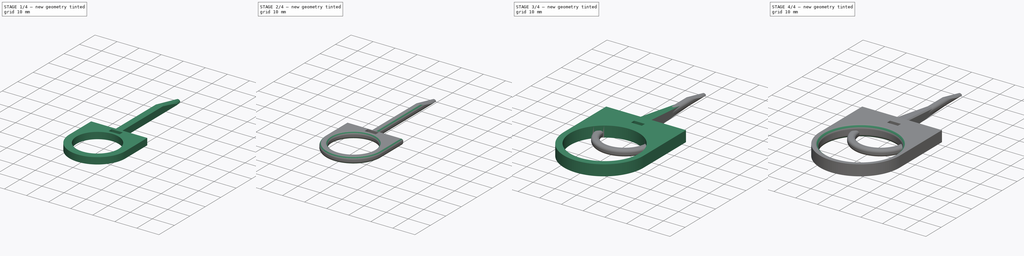
[diagram: build sequence overview — one tinted view per stage of 4, left to right]
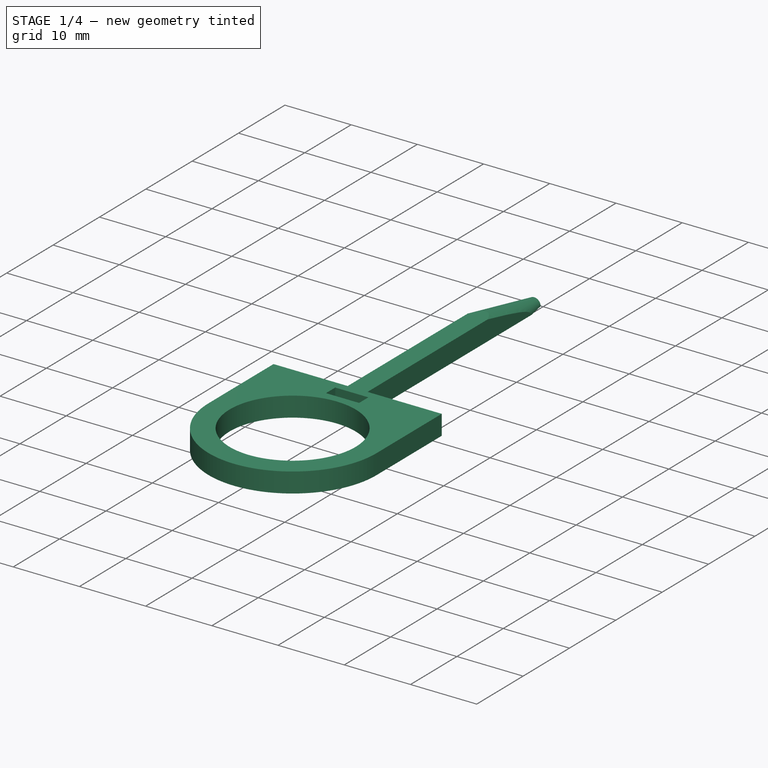
[diagram: stage 1 of 4 — iso view after this stage's code; geometry added in this stage tinted green]
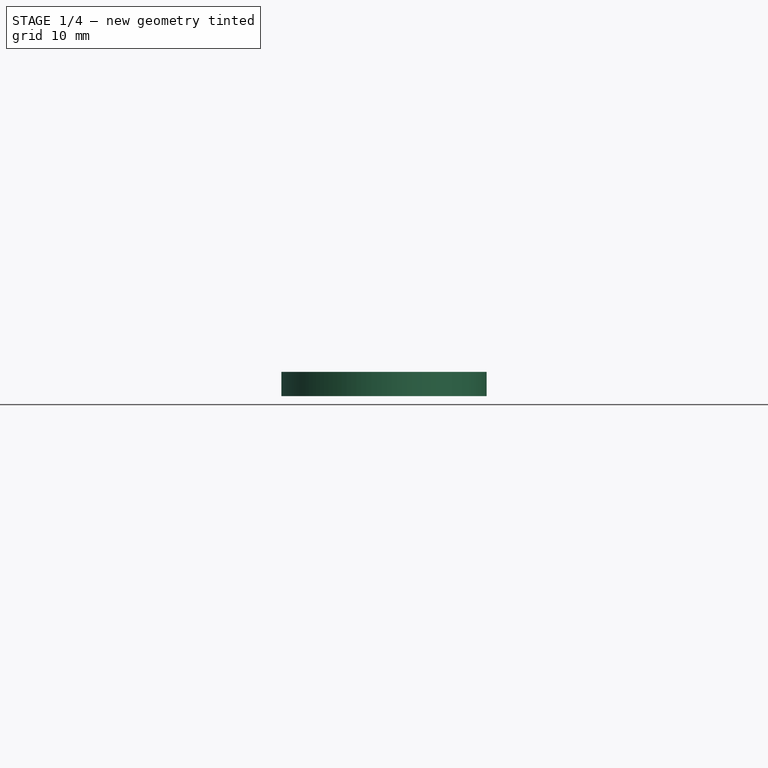
[diagram: stage 1 of 4 — front view after this stage's code; geometry added in this stage tinted green]
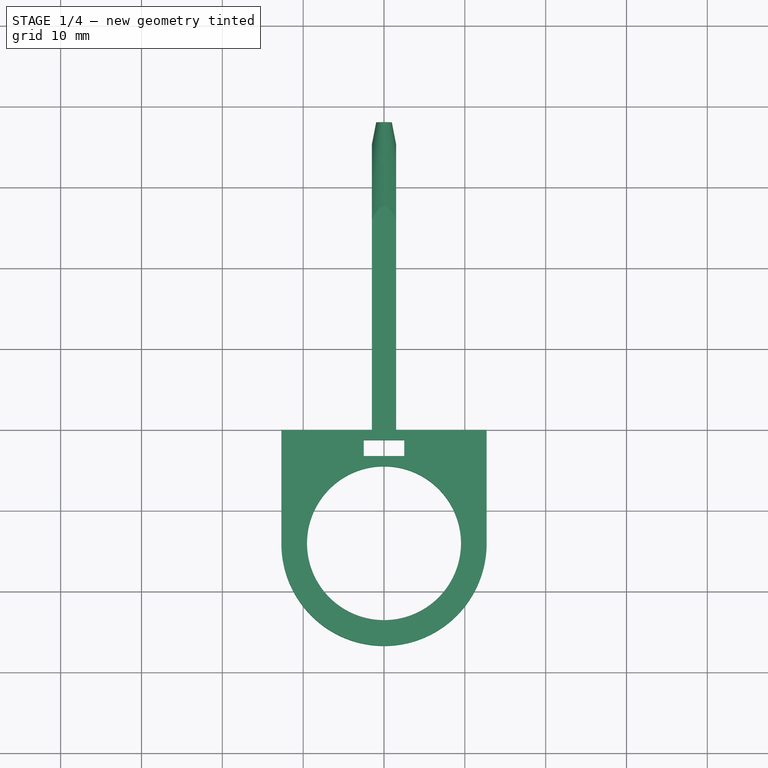
[diagram: stage 1 of 4 — top view after this stage's code; geometry added in this stage tinted green]
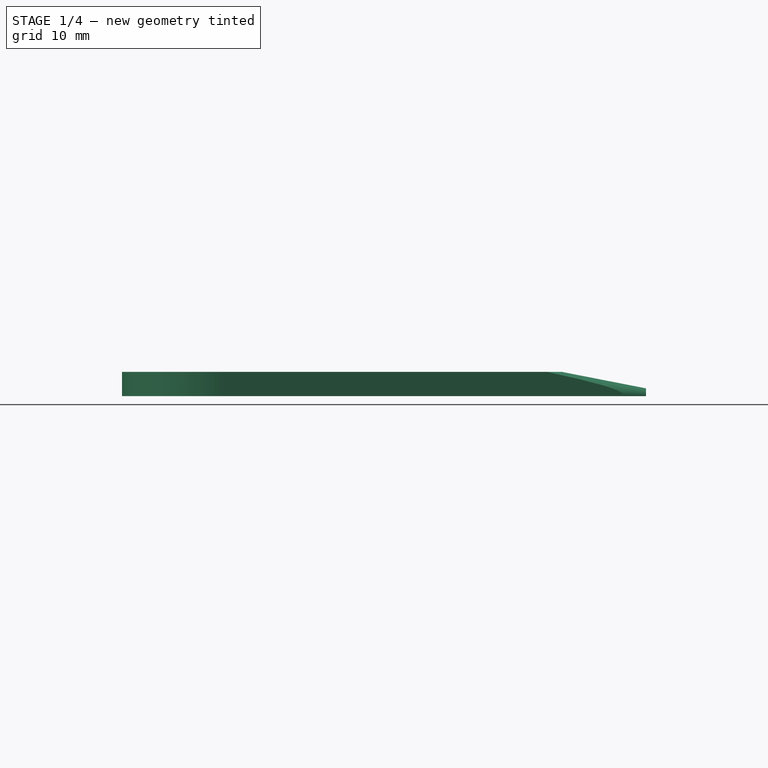
[diagram: stage 1 of 4 — right view after this stage's code; geometry added in this stage tinted green]
FCSTD DOCUMENT  (FreeCAD 1.0R39285 (Git))
Label: TargetMount
License: All rights reserved
LicenseURL: https://en.wikipedia.org/wiki/All_rights_reserved
objects: Sketcher::SketchObject×5, PartDesign::Fillet×3, PartDesign::Pad×2, PartDesign::Pocket×2, PartDesign::Body×2, App::Part×2, PartDesign::Chamfer×1, PartDesign::Groove×1
note: 39 computed .brp shape members not serialized (recipe doc carries the construction recipe); baked Part::Feature solids carry a one-line shape summary decoded from their .brp

FEATURE [PartDesign::Body] Body  label="MountBody"
  AllowCompound = false
  Group = -> [Sketch,Pad,Sketch001,Pocket,Sketch002,Pocket001,Chamfer,Fillet]
  Origin = -> Origin001
  Tip = -> Fillet
FEATURE [App::Part] Part  label="MountTooBig"
  Group = -> [Body]
  Origin = -> Origin
FEATURE [Sketcher::SketchObject] Sketch003
  ArcFitTolerance = 1e-06
  AttachmentSupport = -> [XY_Plane003]
  FullyConstrained = true
  MakeInternals = false
  MapMode = 5
  sketch-geometry (13):
    g0: LineSegment StartX=-12.7 StartY=0 StartZ=0 EndX=-12.7 EndY=-14.02 EndZ=0
    g1: LineSegment StartX=12.7 StartY=-14.02 StartZ=0 EndX=12.7 EndY=0 EndZ=0
    g2: LineSegment StartX=12.7 StartY=0 StartZ=0 EndX=-12.7 EndY=0 EndZ=0
    g3: LineSegment StartX=-2.5 StartY=-1.25 StartZ=0 EndX=-2.5 EndY=-3.25 EndZ=0
    g4: LineSegment StartX=-2.5 StartY=-3.25 StartZ=0 EndX=2.5 EndY=-3.25 EndZ=0
    g5: LineSegment StartX=2.5 StartY=-3.25 StartZ=0 EndX=2.5 EndY=-1.25 EndZ=0
    g6: LineSegment StartX=2.5 StartY=-1.25 StartZ=0 EndX=-2.5 EndY=-1.25 EndZ=0
    g7: Circle CenterX=0 CenterY=-14.02 CenterZ=0 NormalX=0 NormalY=0 NormalZ=1 AngleXU=0 Radius=9.525
    g8: ArcOfCircle CenterX=0 CenterY=-14.02 CenterZ=0 NormalX=0 NormalY=0 NormalZ=1 AngleXU=0 Radius=12.7 StartAngle=3.14159 EndAngle=6.28319
    g9: LineSegment StartX=-1.5 StartY=0 StartZ=0 EndX=1.5 EndY=0 EndZ=0
    g10: LineSegment StartX=1.5 StartY=0 StartZ=0 EndX=1.5 EndY=38.1 EndZ=0
    g11: LineSegment StartX=1.5 StartY=38.1 StartZ=0 EndX=-1.5 EndY=38.1 EndZ=0
    g12: LineSegment StartX=-1.5 StartY=38.1 StartZ=0 EndX=-1.5 EndY=0 EndZ=0
  constraints (39):
    c: Coincident(g1,g2)
    c: Coincident(g2,g0)
    c: Vertical(g0)
    c: Vertical(g1)
    c: Horizontal(g2)
    c: Distance(g0,g1) = 25.4
    c: PointOnObject(g0,g-1)
    c: DistanceX(g-1,g1) = 12.7
    c: Coincident(g3,g4)
    c: Coincident(g4,g5)
    c: Coincident(g5,g6)
    c: Coincident(g6,g3)
    c: Vertical(g3)
    c: Vertical(g5)
    c: Horizontal(g4)
    c: Horizontal(g6)
    c: Distance(g3,g5) = 5
    c: Distance(g4,g6) = 2
    c: DistanceX(g3,g-1) = 2.5
    c: DistanceY(g5,g-1) = 1.25
    c: Diameter(g7) = 19.05
    c: DistanceY(g7,g-1) = 14.02
    c: Coincident(g8,g7)
    c: Coincident(g8,g1)
    c: Coincident(g8,g0)
    c: DistanceY(g0,g7) = 0
    c: DistanceY(g1,g7) = 0
    c: Coincident(g9,g10)
    c: Coincident(g10,g11)
    c: Coincident(g11,g12)
    c: Coincident(g12,g9)
    c: Horizontal(g9)
    c: Horizontal(g11)
    c: Vertical(g10)
    c: Vertical(g12)
    c: Distance(g10,g12) = 3
    c: Distance(g9,g11) = 38.1
    c: PointOnObject(g9,g2)
    c: DistanceX(g9,g-1) = 1.5
FEATURE [PartDesign::Pad] Pad001  label="MainPad001"
  Direction = (0,0,1)
  Length = 3
  Length2 = 10
  Profile = -> Sketch003
  ReferenceAxis = -> Sketch003 [N_Axis]
  Refine = true
  Suppressed = false
  Type = 0
FEATURE [Sketcher::SketchObject] Sketch004
  ArcFitTolerance = 1e-06
  AttachmentSupport = -> [YZ_Plane003]
  FullyConstrained = false
  MakeInternals = false
  MapMode = 5
  Placement = pos=(0,0,0) rot=(0.57735,0.57735,0.57735;2.0944rad)
  sketch-geometry (3):
    g0: LineSegment StartX=11.5758 StartY=6.15577 StartZ=0 EndX=40.7175 EndY=0.451151 EndZ=0
    g1: LineSegment StartX=40.7175 StartY=0.451151 StartZ=0 EndX=38.9053 EndY=6.35854 EndZ=0
    g2: LineSegment StartX=38.9053 StartY=6.35854 StartZ=0 EndX=11.5758 EndY=6.15577 EndZ=0
  constraints (3):
    c: Coincident(g0,g1)
    c: Coincident(g1,g2)
    c: Coincident(g2,g0)
FEATURE [PartDesign::Groove] Groove
  Angle = 360
  Angle2 = 60
  Axis = (1e-16,1,-1e-16)
  Base = (0,0,0)
  BaseFeature = -> Pad001
  Profile = -> Sketch004
  ReferenceAxis = -> Y_Axis003
  Refine = true
  Reversed = true
  Suppressed = false
  Type = 0
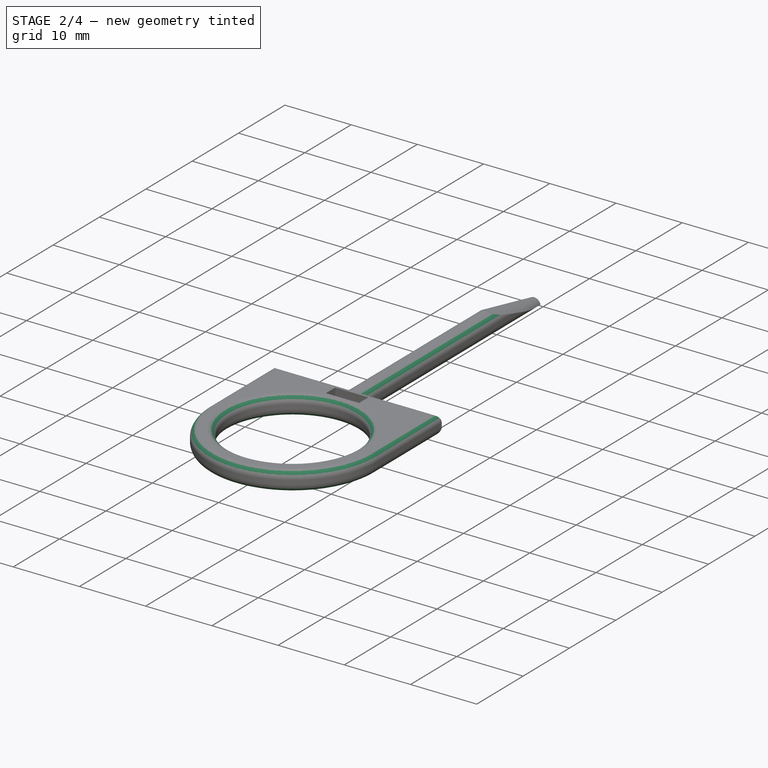
[diagram: stage 2 of 4 — iso view after this stage's code; geometry added in this stage tinted green]
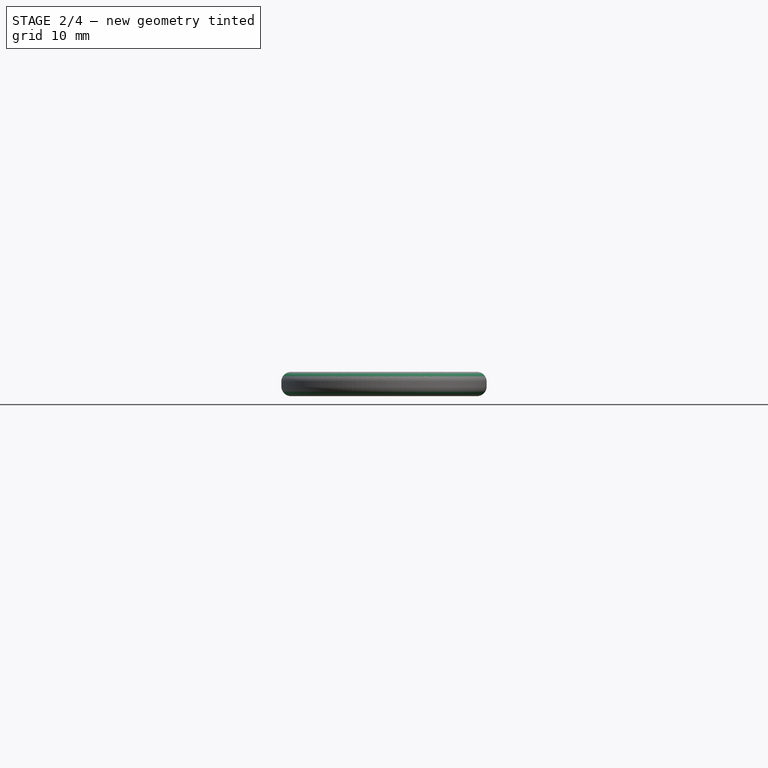
[diagram: stage 2 of 4 — front view after this stage's code; geometry added in this stage tinted green]
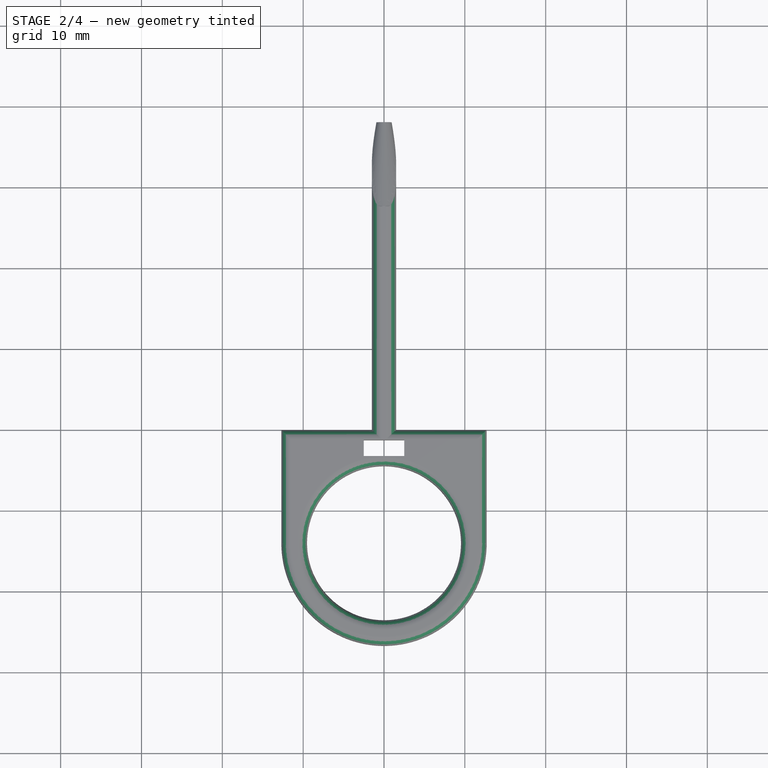
[diagram: stage 2 of 4 — top view after this stage's code; geometry added in this stage tinted green]
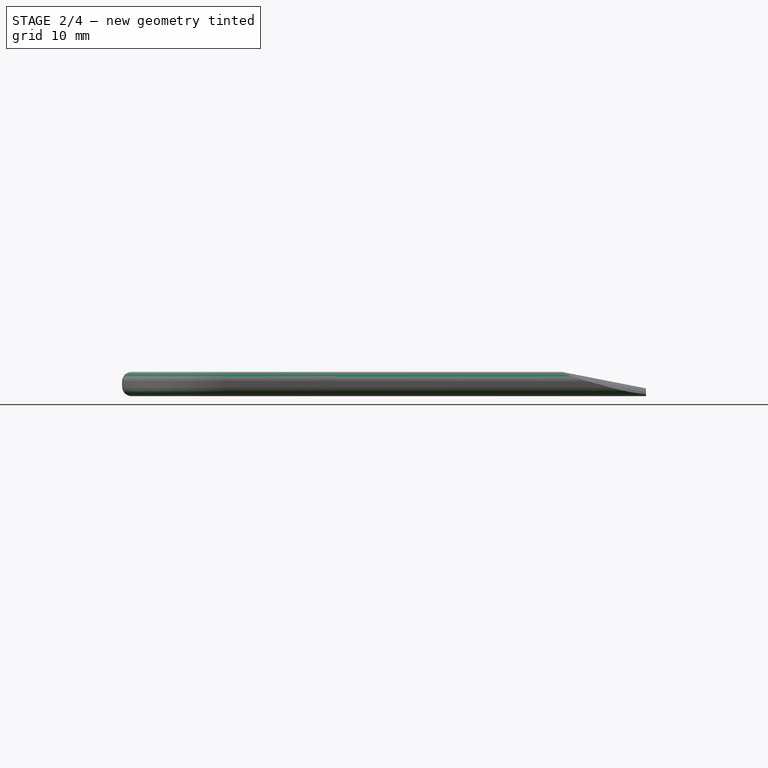
[diagram: stage 2 of 4 — right view after this stage's code; geometry added in this stage tinted green]
FEATURE [PartDesign::Fillet] Fillet001
  Base = -> Groove [Edge28,Edge25,Edge11,Edge15]
  BaseFeature = -> Groove
  Radius = 1.25
  Refine = true
  SupportTransform = false
  Suppressed = false
  UseAllEdges = false
FEATURE [PartDesign::Fillet] Fillet002
  Base = -> Fillet001 [Edge37,Edge24,Edge35,Edge36,Edge21,Edge23,Edge34,Edge7,Edge33,Edge20,Edge6,Edge22]
  BaseFeature = -> Fillet001
  Radius = 1.2
  Refine = true
  SupportTransform = false
  Suppressed = false
  UseAllEdges = false
FEATURE [PartDesign::Body] Body001  label="MountBody001"
  AllowCompound = false
  Group = -> [Sketch003,Pad001,Sketch004,Groove,Fillet001,Fillet002]
  Origin = -> Origin003
  Tip = -> Fillet002
FEATURE [App::Part] Part001  label="Mount"
  Group = -> [Body001]
  Origin = -> Origin002
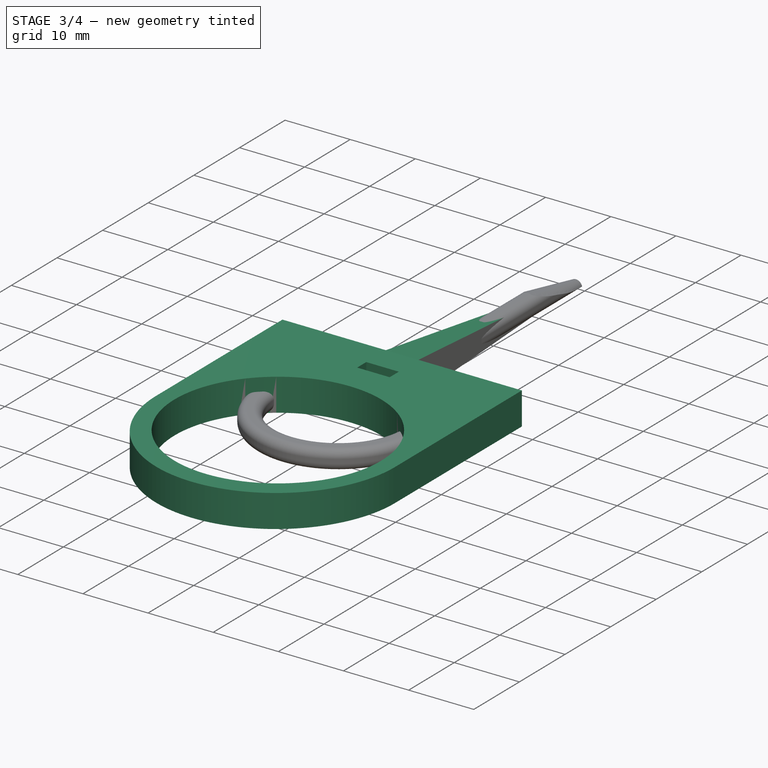
[diagram: stage 3 of 4 — iso view after this stage's code; geometry added in this stage tinted green]
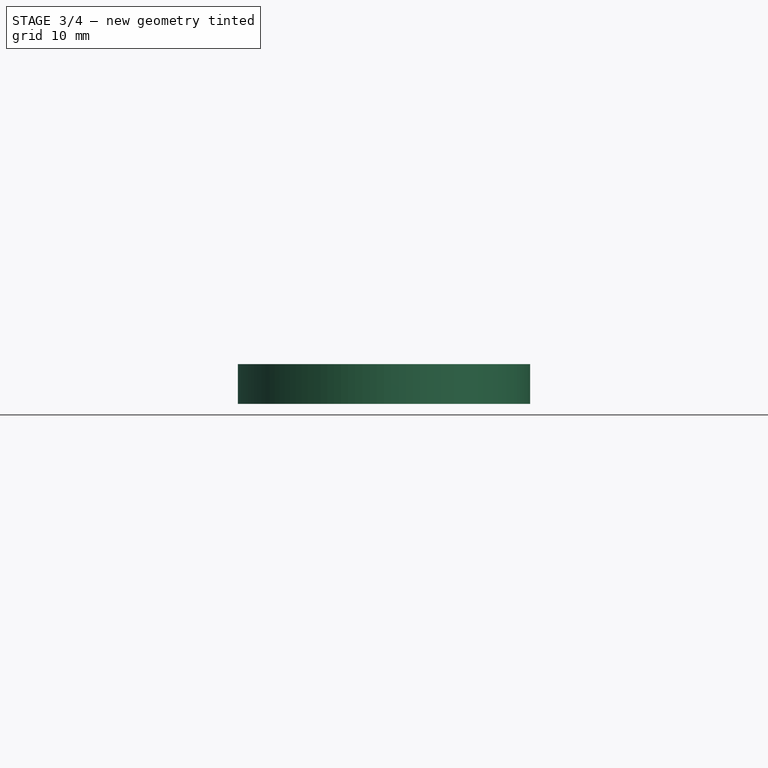
[diagram: stage 3 of 4 — front view after this stage's code; geometry added in this stage tinted green]
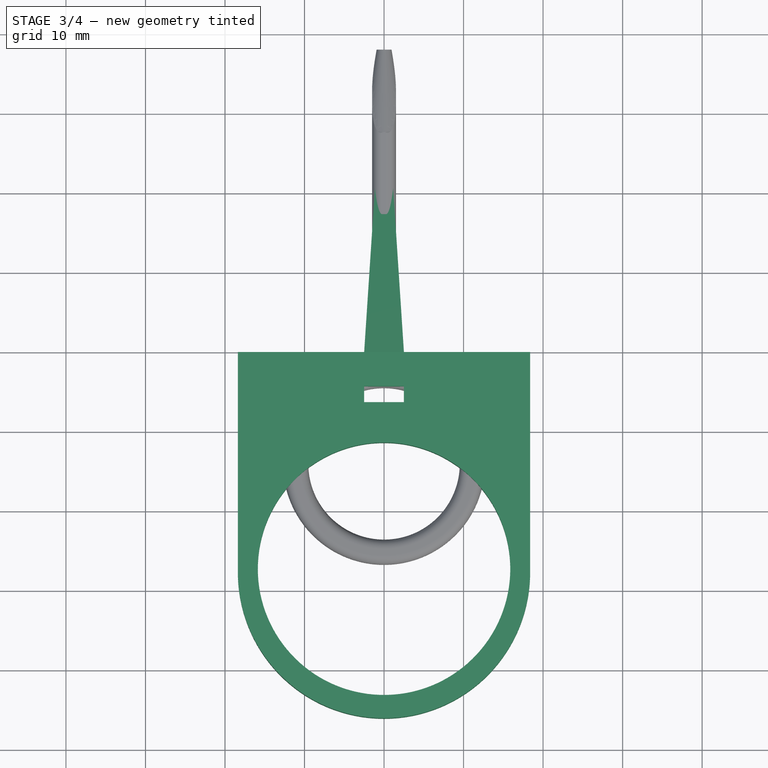
[diagram: stage 3 of 4 — top view after this stage's code; geometry added in this stage tinted green]
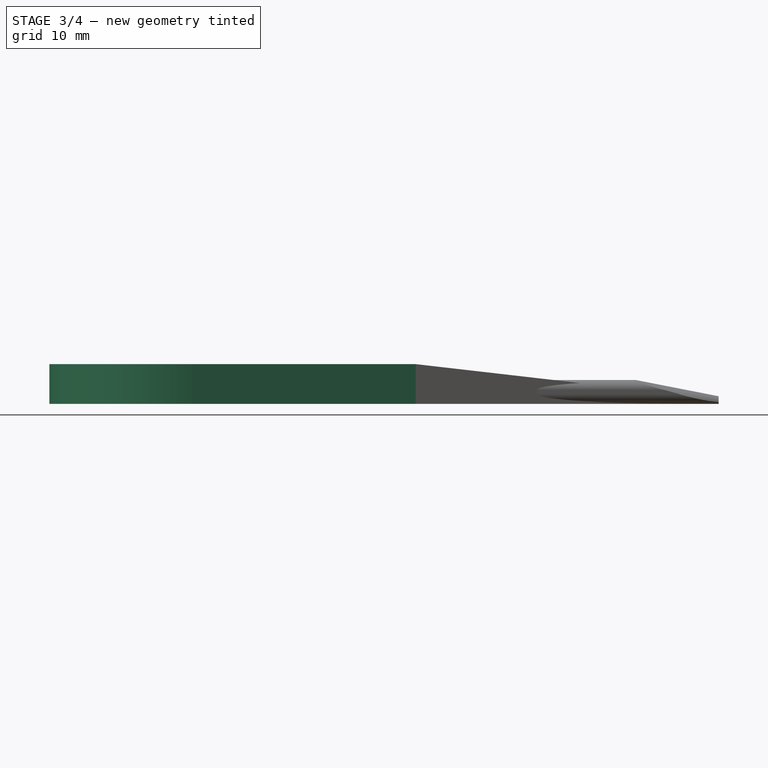
[diagram: stage 3 of 4 — right view after this stage's code; geometry added in this stage tinted green]
FEATURE [Sketcher::SketchObject] Sketch
  ArcFitTolerance = 1e-06
  AttachmentSupport = -> [XY_Plane001]
  FullyConstrained = true
  MakeInternals = false
  MapMode = 5
  sketch-geometry (10):
    g0: Circle CenterX=0 CenterY=-27.26 CenterZ=0 NormalX=0 NormalY=0 NormalZ=1 AngleXU=0 Radius=15.875
    g1: LineSegment StartX=-18.38 StartY=0 StartZ=0 EndX=-18.38 EndY=-8 EndZ=0
    g2: LineSegment StartX=18.37 StartY=-8 StartZ=0 EndX=18.37 EndY=0 EndZ=0
    g3: LineSegment StartX=18.37 StartY=0 StartZ=0 EndX=2.5 EndY=0 EndZ=0
    g4: LineSegment StartX=-18.38 StartY=-8 StartZ=0 EndX=-18.38 EndY=-27.26 EndZ=0
    g5: LineSegment StartX=18.37 StartY=-27.26 StartZ=0 EndX=18.37 EndY=-8 EndZ=0
    g6: ArcOfCircle CenterX=-0.005 CenterY=-27.6887 CenterZ=0 NormalX=0 NormalY=0 NormalZ=1 AngleXU=0 Radius=18.38 StartAngle=3.11827 EndAngle=6.30651
    g7: LineSegment StartX=-2.5 StartY=0 StartZ=0 EndX=0 EndY=38.1 EndZ=0
    g8: LineSegment StartX=0 StartY=38.1 StartZ=0 EndX=2.5 EndY=0 EndZ=0
    g9: LineSegment StartX=-2.5 StartY=0 StartZ=0 EndX=-18.38 EndY=0 EndZ=0
  constraints (33):
    c: Diameter(g0) = 31.75
    c: PointOnObject(g0,g-2)
    c: Coincident(g2,g3)
    c: Coincident(g9,g1)
    c: Vertical(g1)
    c: Vertical(g2)
    c: Horizontal(g3)
    c: Distance(g1,g2) = 36.75
    c: Distance(g1,g9) = 8
    c: PointOnObject(g1,g-1)
    c: Vertical(g4)
    c: Vertical(g5)
    c: Coincident(g4,g1)
    c: PointOnObject(g5,g6)
    c: PointOnObject(g6,g5)
    c: DistanceY(g1,g2) = 0
    c: DistanceX(g1,g-1) = 18.38
    c: Coincident(g6,g4)
    c: Coincident(g5,g2)
    c: DistanceY(g5,g4) = 0
    c: DistanceY(g0,g-1) = 27.26
    c: DistanceY(g4,g-1) = 27.26
    c: Radius(g6) = 18.38
    c: PointOnObject(g7,g9)
    c: PointOnObject(g7,g-2)
    c: Coincident(g7,g8)
    c: DistanceX(g7,g-1) = 2.5
    c: DistanceX(g-1,g8) = 2.5
    c: Coincident(g3,g8)
    c: PointOnObject(g9,g7)
    c: DistanceY(g-1,g7) = 38.1
    c: DistanceY(g7,g-1) = 0
    c: DistanceY(g3,g-1) = 0
FEATURE [PartDesign::Pad] Pad  label="MainPad"
  Direction = (0,0,1)
  Length = 5
  Length2 = 10
  Profile = -> Sketch
  ReferenceAxis = -> Sketch [N_Axis]
  Refine = true
  Suppressed = false
  Type = 0
FEATURE [Sketcher::SketchObject] Sketch001
  ArcFitTolerance = 1e-06
  AttachmentSupport = -> [Pad]
  FullyConstrained = true
  MakeInternals = false
  MapMode = 5
  Placement = pos=(0,0,5) rot=(0,0,1;0rad)
  sketch-geometry (4):
    g0: LineSegment StartX=-2.5 StartY=-4.31 StartZ=0 EndX=-2.5 EndY=-6.31 EndZ=0
    g1: LineSegment StartX=-2.5 StartY=-6.31 StartZ=0 EndX=2.5 EndY=-6.31 EndZ=0
    g2: LineSegment StartX=2.5 StartY=-6.31 StartZ=0 EndX=2.5 EndY=-4.31 EndZ=0
    g3: LineSegment StartX=2.5 StartY=-4.31 StartZ=0 EndX=-2.5 EndY=-4.31 EndZ=0
  constraints (12):
    c: Coincident(g0,g1)
    c: Coincident(g1,g2)
    c: Coincident(g2,g3)
    c: Coincident(g3,g0)
    c: Vertical(g0)
    c: Vertical(g2)
    c: Horizontal(g1)
    c: Horizontal(g3)
    c: Distance(g0,g2) = 5
    c: Distance(g1,g3) = 2
    c: DistanceX(g-1,g2) = 2.5
    c: DistanceY(g2,g-1) = 4.31
FEATURE [PartDesign::Pocket] Pocket  label="SocketPocket"
  BaseFeature = -> Pad
  Direction = (0,0,-1)
  Length = 5
  Length2 = 5
  Profile = -> Sketch001
  ReferenceAxis = -> Sketch001 [N_Axis]
  Refine = true
  Suppressed = false
  Type = 1
FEATURE [Sketcher::SketchObject] Sketch002
  ArcFitTolerance = 1e-06
  AttachmentSupport = -> [Pocket]
  FullyConstrained = false
  MakeInternals = false
  MapMode = 5
  Placement = pos=(18.37,0,0) rot=(0.57735,0.57735,0.57735;2.0944rad)
  sketch-geometry (3):
    g0: LineSegment StartX=43.4135 StartY=0 StartZ=0 EndX=0 EndY=5 EndZ=0
    g1: LineSegment StartX=0 StartY=5 StartZ=0 EndX=43.664 EndY=7.02339 EndZ=0
    g2: LineSegment StartX=43.664 StartY=7.02339 StartZ=0 EndX=43.4135 EndY=0 EndZ=0
  constraints (6):
    c: PointOnObject(g0,g-1)
    c: PointOnObject(g0,g-2)
    c: Coincident(g0,g1)
    c: Coincident(g1,g2)
    c: Coincident(g2,g0)
    c: DistanceY(g-1,g0) = 5
FEATURE [PartDesign::Pocket] Pocket001
  BaseFeature = -> Pocket
  Direction = (-1,0,0)
  Length = 5
  Length2 = 5
  Profile = -> Sketch002
  ReferenceAxis = -> Sketch002 [N_Axis]
  Refine = true
  Suppressed = false
  Type = 1
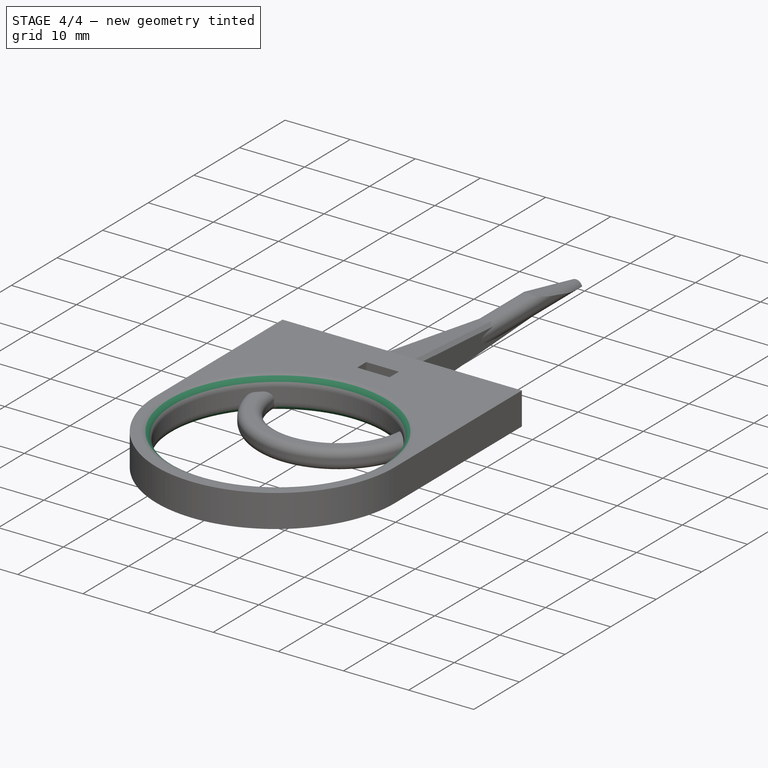
[diagram: stage 4 of 4 — iso view after this stage's code; geometry added in this stage tinted green]
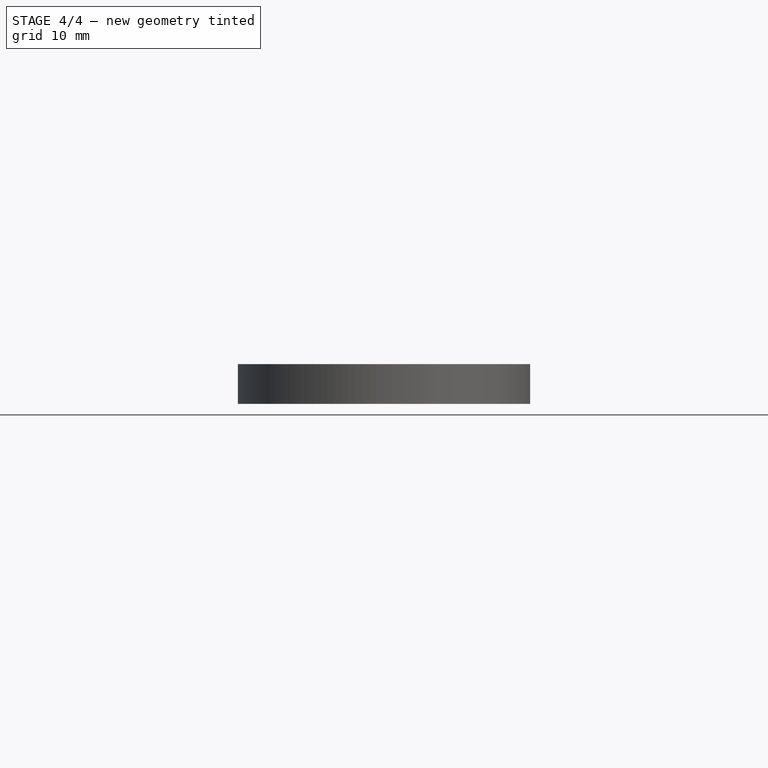
[diagram: stage 4 of 4 — front view after this stage's code; geometry added in this stage tinted green]
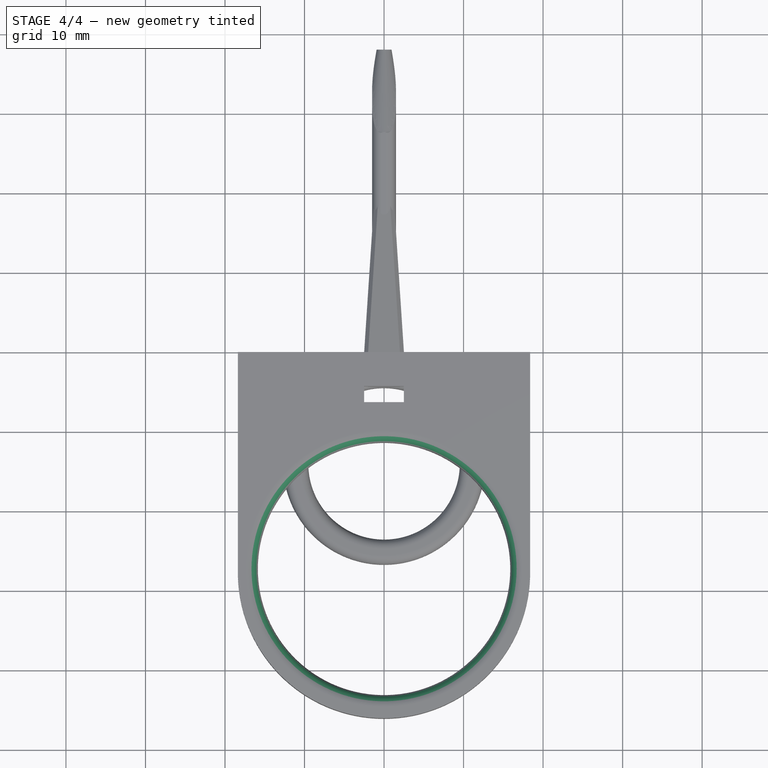
[diagram: stage 4 of 4 — top view after this stage's code; geometry added in this stage tinted green]
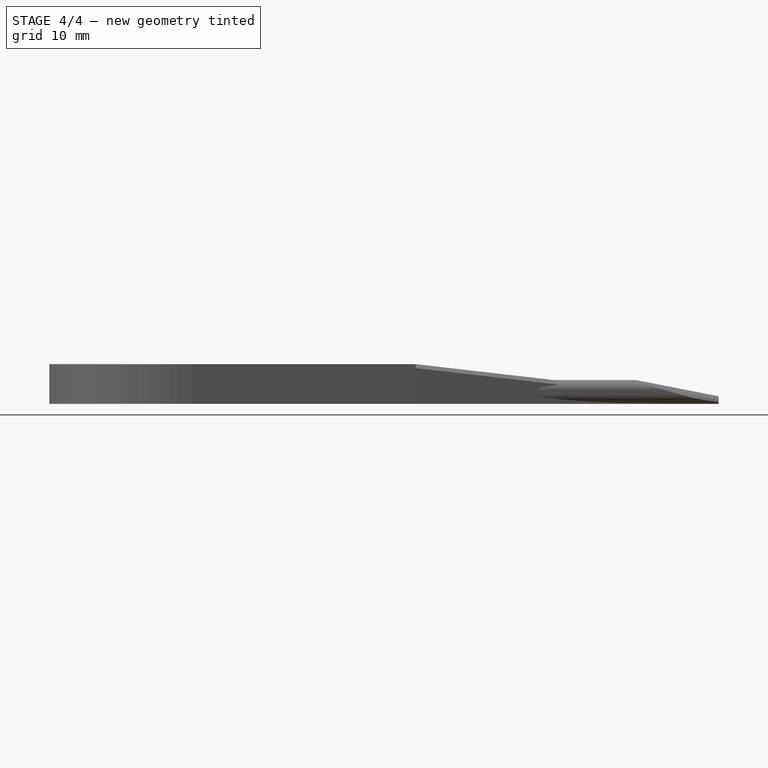
[diagram: stage 4 of 4 — right view after this stage's code; geometry added in this stage tinted green]
FEATURE [PartDesign::Chamfer] Chamfer
  Angle = 45
  Base = -> Pocket001 [Edge7,Edge30]
  BaseFeature = -> Pocket001
  ChamferType = 0
  FlipDirection = false
  Refine = true
  Size = 0.5
  Size2 = 1
  SupportTransform = false
  Suppressed = false
  UseAllEdges = false
FEATURE [PartDesign::Fillet] Fillet
  Base = -> Chamfer [Edge28,Edge17]
  BaseFeature = -> Chamfer
  Radius = 1.5
  Refine = true
  SupportTransform = false
  Suppressed = false
  UseAllEdges = false
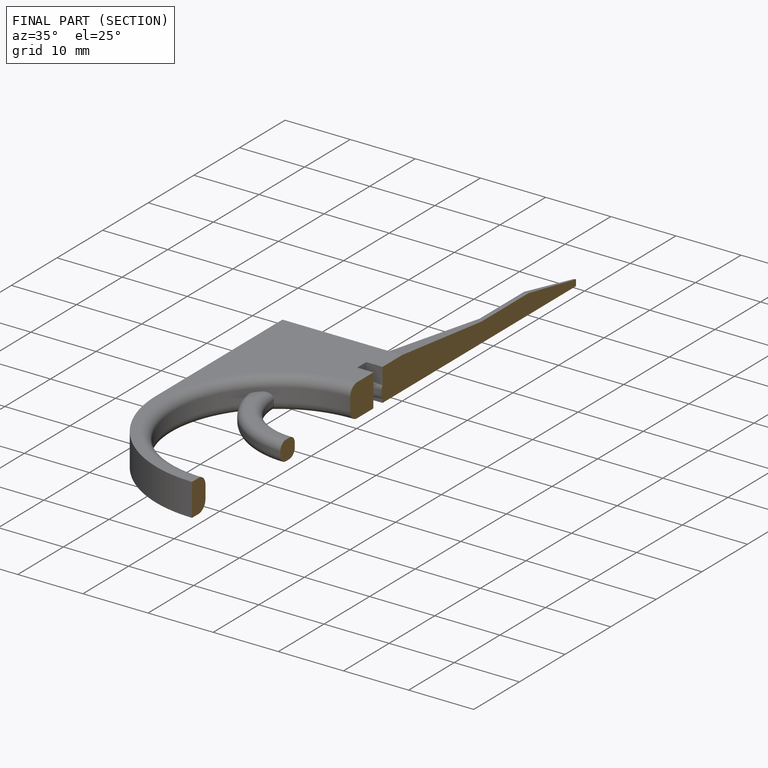
[diagram: finished part — half-section view (interior)]
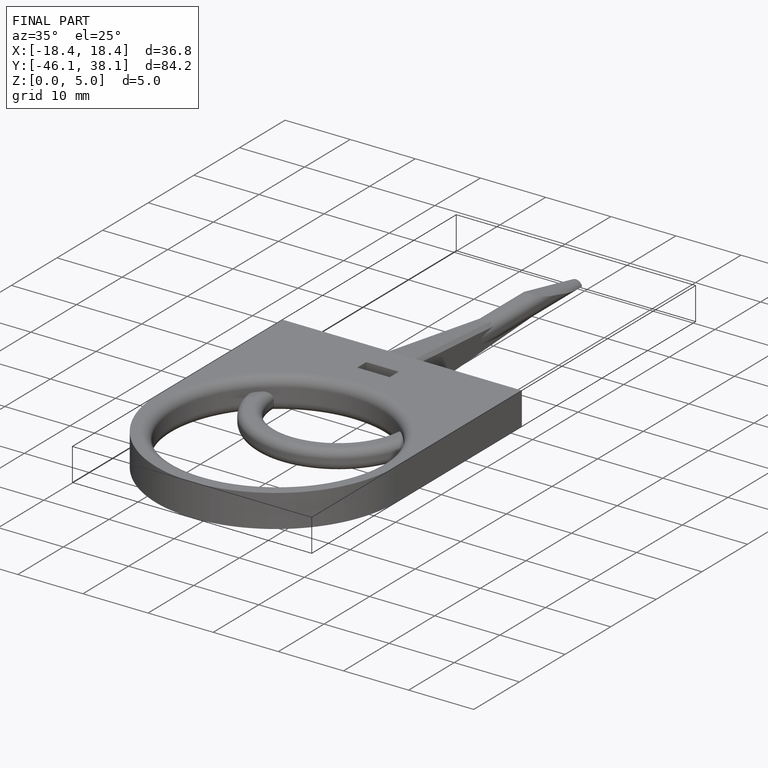
[diagram: finished part — iso view with bounding-box wireframe]
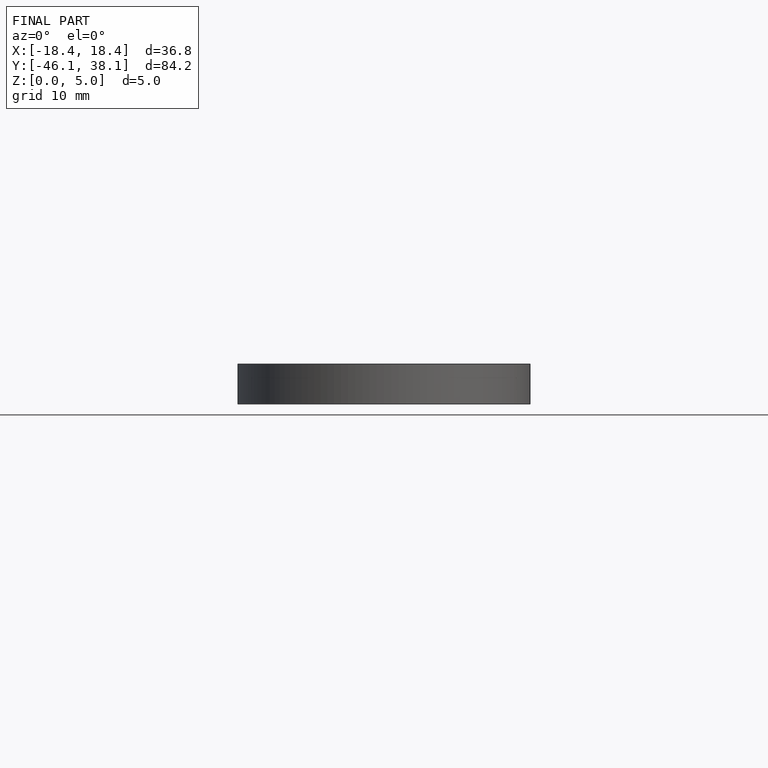
[diagram: finished part — front view with bounding-box wireframe]
